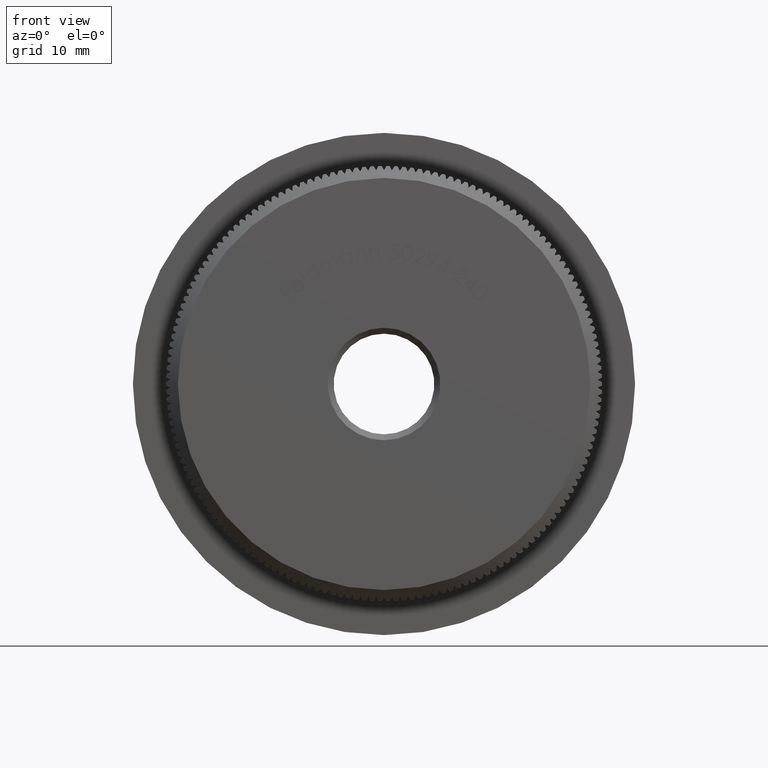
[diagram: clean part render]
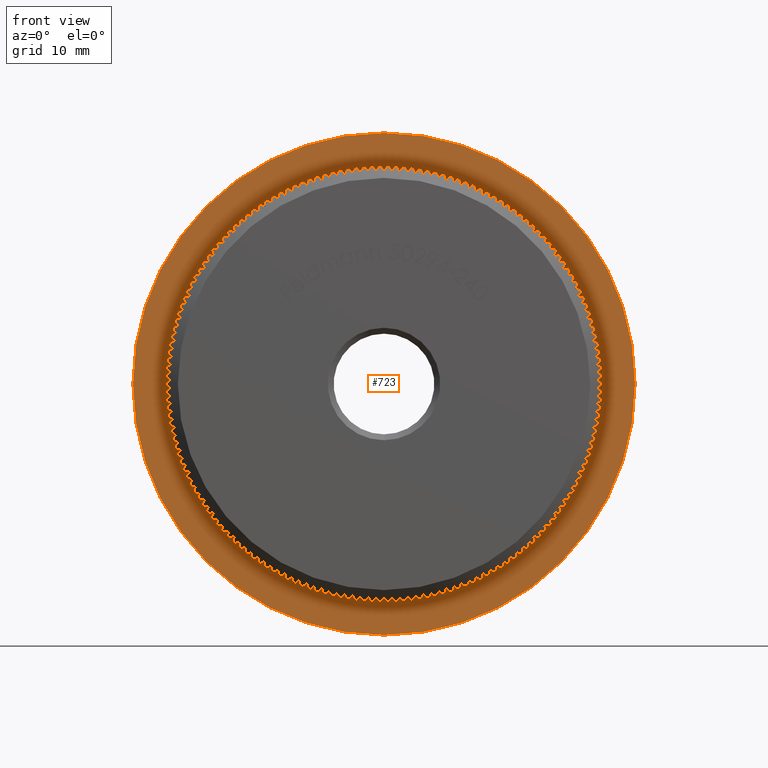
[diagram: same view with one face highlighted and labeled with its STEP entity id]
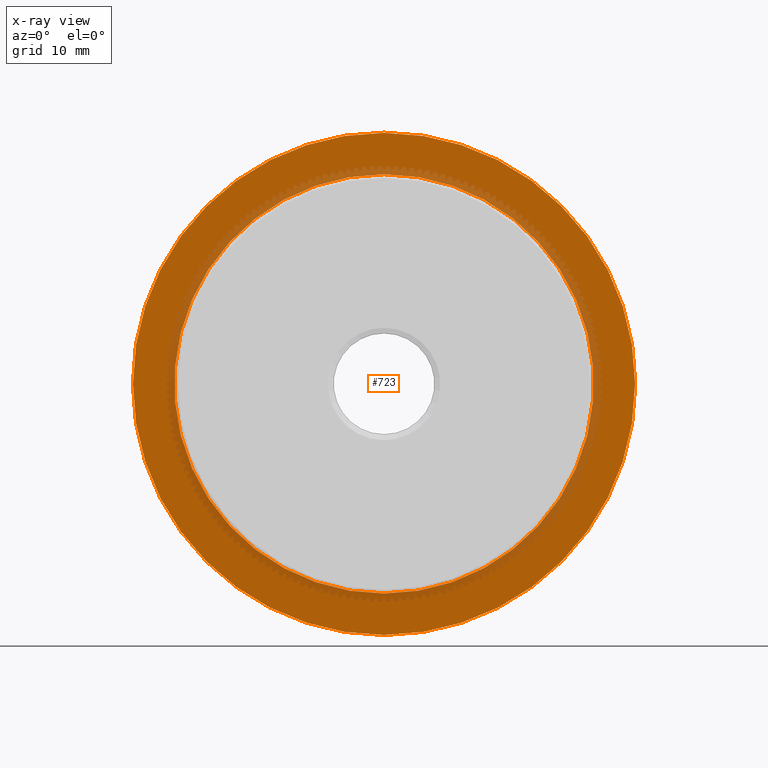
[diagram: x-ray of the same camera — body ghosted, the highlighted face saturated]
A machine part, front view. The second image highlights one B-rep face of the part: STEP entity #723.
The next image is the same camera in x-ray: the body ghosted, the highlighted face saturated — about 17% of this face is hidden behind the body in this view.
In plain terms, the highlighted planar face has unit normal (0, -1, -0).
Its self-contained STEP definition (entity closure, byte-faithful):
#169 = ORIENTED_EDGE ( 'NONE', *, *, #7321, .F. ) ;
#306 = DIRECTION ( 'NONE',  ( 0.0000000000000000000, 0.0000000000000000000, -1.000000000000000000 ) ) ;
#723 = ADVANCED_FACE ( 'NONE', ( #17555, #20149 ), #26222, .T. ) ;
#1069 = CARTESIAN_POINT ( 'NONE',  ( 0.0000000000000000000, 8.000000000000000000, 0.0000000000000000000 ) ) ;
#1938 = AXIS2_PLACEMENT_3D ( 'NONE', #1069, #12754, #5529 ) ;
#2555 = CARTESIAN_POINT ( 'NONE',  ( 0.0000000000000000000, 8.000000000000000000, -17.69999999999999900 ) ) ;
#3517 = VERTEX_POINT ( 'NONE', #18038 ) ;
#4037 = CIRCLE ( 'NONE', #14037, 17.69999999999999900 ) ;
#4239 = AXIS2_PLACEMENT_3D ( 'NONE', #9734, #26344, #23850 ) ;
#4708 = CARTESIAN_POINT ( 'NONE',  ( 0.0000000000000000000, 8.000000000000000000, 0.0000000000000000000 ) ) ;
#5529 = DIRECTION ( 'NONE',  ( 0.0000000000000000000, 0.0000000000000000000, -1.000000000000000000 ) ) ;
#5807 = ORIENTED_EDGE ( 'NONE', *, *, #28710, .T. ) ;
#6971 = EDGE_LOOP ( 'NONE', ( #19479, #169 ) ) ;
#7321 = EDGE_CURVE ( 'NONE', #3517, #19686, #13620, .T. ) ;
#9508 = CARTESIAN_POINT ( 'NONE',  ( 17.69999999999999900, 8.000000000000000000, 0.0000000000000000000 ) ) ;
#9734 = CARTESIAN_POINT ( 'NONE',  ( 0.0000000000000000000, 8.000000000000000000, 0.0000000000000000000 ) ) ;
#9947 = CIRCLE ( 'NONE', #17061, 21.19999999999999900 ) ;
#10009 = VERTEX_POINT ( 'NONE', #10093 ) ;
#10093 = CARTESIAN_POINT ( 'NONE',  ( 2.596251214192388800E-015, 8.000000000000000000, 21.19999999999999900 ) ) ;
#10121 = CARTESIAN_POINT ( 'NONE',  ( 0.0000000000000000000, 8.000000000000000000, 0.0000000000000000000 ) ) ;
#11393 = CARTESIAN_POINT ( 'NONE',  ( 0.0000000000000000000, 8.000000000000000000, -21.19999999999999900 ) ) ;
#12196 = CIRCLE ( 'NONE', #1938, 21.19999999999999900 ) ;
#12285 = EDGE_CURVE ( 'NONE', #19686, #3517, #4037, .T. ) ;
#12754 = DIRECTION ( 'NONE',  ( -0.0000000000000000000, -1.000000000000000000, -0.0000000000000000000 ) ) ;
#13620 = CIRCLE ( 'NONE', #4239, 17.69999999999999900 ) ;
#14037 = AXIS2_PLACEMENT_3D ( 'NONE', #4708, #21322, #25651 ) ;
#14070 = DIRECTION ( 'NONE',  ( 0.0000000000000000000, 0.0000000000000000000, -1.000000000000000000 ) ) ;
#14677 = AXIS2_PLACEMENT_3D ( 'NONE', #9508, #28593, #14070 ) ;
#14879 = DIRECTION ( 'NONE',  ( -0.0000000000000000000, -1.000000000000000000, -0.0000000000000000000 ) ) ;
#17061 = AXIS2_PLACEMENT_3D ( 'NONE', #10121, #14879, #306 ) ;
#17555 = FACE_OUTER_BOUND ( 'NONE', #30733, .T. ) ;
#18038 = CARTESIAN_POINT ( 'NONE',  ( 2.210487472460972900E-015, 8.000000000000000000, 17.69999999999999900 ) ) ;
#19479 = ORIENTED_EDGE ( 'NONE', *, *, #12285, .F. ) ;
#19686 = VERTEX_POINT ( 'NONE', #2555 ) ;
#20149 = FACE_BOUND ( 'NONE', #6971, .T. ) ;
#20861 = VERTEX_POINT ( 'NONE', #11393 ) ;
#21322 = DIRECTION ( 'NONE',  ( -0.0000000000000000000, -1.000000000000000000, -0.0000000000000000000 ) ) ;
#23850 = DIRECTION ( 'NONE',  ( 0.0000000000000000000, 0.0000000000000000000, -1.000000000000000000 ) ) ;
#24614 = ORIENTED_EDGE ( 'NONE', *, *, #27337, .T. ) ;
#25651 = DIRECTION ( 'NONE',  ( 0.0000000000000000000, 0.0000000000000000000, -1.000000000000000000 ) ) ;
#26222 = PLANE ( 'NONE',  #14677 ) ;
#26344 = DIRECTION ( 'NONE',  ( -0.0000000000000000000, -1.000000000000000000, -0.0000000000000000000 ) ) ;
#27337 = EDGE_CURVE ( 'NONE', #10009, #20861, #12196, .T. ) ;
#28593 = DIRECTION ( 'NONE',  ( 0.0000000000000000000, -1.000000000000000000, -0.0000000000000000000 ) ) ;
#28710 = EDGE_CURVE ( 'NONE', #20861, #10009, #9947, .T. ) ;
#30733 = EDGE_LOOP ( 'NONE', ( #5807, #24614 ) ) ;